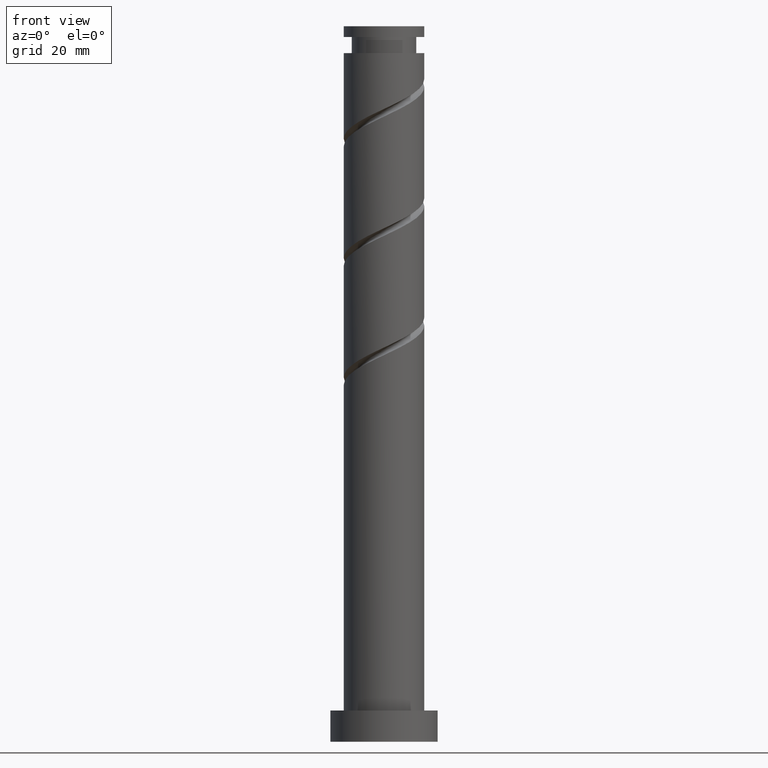
[diagram: clean part render]
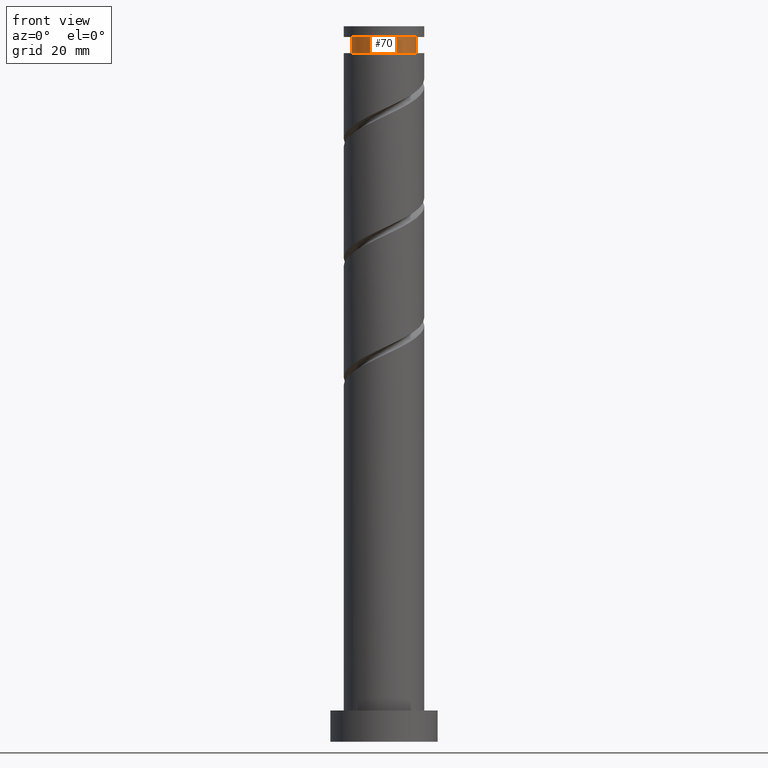
[diagram: same view with one face highlighted and labeled with its STEP entity id]
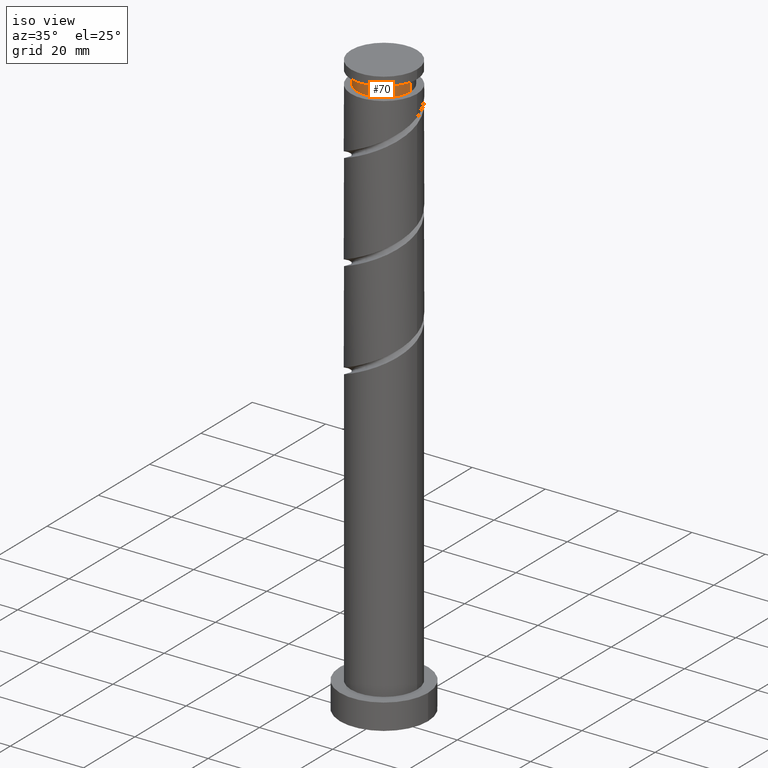
[diagram: same view with one face highlighted and labeled with its STEP entity id]
A machine part, front view. The second image highlights one B-rep face of the part: STEP entity #70.
A second angle (iso view) of the same face is appended — the face is thin or edge-on in the first view.
In plain terms, the highlighted cylindrical surface (edge-blend (fillet) strip) has radius 7.2 mm, axis along (-0, -0, -1).
Its self-contained STEP definition (entity closure, byte-faithful):
#18 = ORIENTED_EDGE ( 'NONE', *, *, #1366, .F. ) ;
#41 = CARTESIAN_POINT ( 'NONE',  ( 0.000000000000000000, 0.000000000000000000, 0.000000000000000000 ) ) ;
#47 = EDGE_CURVE ( 'NONE', #526, #1399, #725, .T. ) ;
#68 = FACE_OUTER_BOUND ( 'NONE', #636, .T. ) ;
#70 = ADVANCED_FACE ( 'NONE', ( #68 ), #1595, .T. ) ;
#91 = CARTESIAN_POINT ( 'NONE',  ( 7.199999999999994849, 8.817456953860936386E-16, 0.000000000000000000 ) ) ;
#94 = ORIENTED_EDGE ( 'NONE', *, *, #1441, .T. ) ;
#214 = CARTESIAN_POINT ( 'NONE',  ( 7.199999999999994849, 8.817456953860936386E-16, 153.9876716117317415 ) ) ;
#287 = DIRECTION ( 'NONE',  ( -0.000000000000000000, -0.000000000000000000, -1.000000000000000000 ) ) ;
#293 = VERTEX_POINT ( 'NONE', #214 ) ;
#345 = CARTESIAN_POINT ( 'NONE',  ( 0.000000000000000000, 0.000000000000000000, 153.9876716117317415 ) ) ;
#361 = LINE ( 'NONE', #876, #617 ) ;
#387 = ORIENTED_EDGE ( 'NONE', *, *, #47, .T. ) ;
#453 = AXIS2_PLACEMENT_3D ( 'NONE', #345, #865, #997 ) ;
#526 = VERTEX_POINT ( 'NONE', #1091 ) ;
#529 = AXIS2_PLACEMENT_3D ( 'NONE', #41, #287, #924 ) ;
#617 = VECTOR ( 'NONE', #752, 1000.000000000000000 ) ;
#636 = EDGE_LOOP ( 'NONE', ( #18, #387, #94, #1029 ) ) ;
#698 = DIRECTION ( 'NONE',  ( -1.000000000000000000, 0.000000000000000000, 0.000000000000000000 ) ) ;
#714 = CARTESIAN_POINT ( 'NONE',  ( 0.000000000000000000, 0.000000000000000000, 157.5876716117317358 ) ) ;
#725 = CIRCLE ( 'NONE', #826, 7.199999999999994849 ) ;
#752 = DIRECTION ( 'NONE',  ( -0.000000000000000000, -0.000000000000000000, -1.000000000000000000 ) ) ;
#826 = AXIS2_PLACEMENT_3D ( 'NONE', #714, #1065, #698 ) ;
#865 = DIRECTION ( 'NONE',  ( -0.000000000000000000, -0.000000000000000000, -1.000000000000000000 ) ) ;
#876 = CARTESIAN_POINT ( 'NONE',  ( -7.199999999999994849, 0.000000000000000000, 0.000000000000000000 ) ) ;
#924 = DIRECTION ( 'NONE',  ( -1.000000000000000000, 0.000000000000000000, 0.000000000000000000 ) ) ;
#997 = DIRECTION ( 'NONE',  ( -1.000000000000000000, 0.000000000000000000, 0.000000000000000000 ) ) ;
#1029 = ORIENTED_EDGE ( 'NONE', *, *, #1236, .F. ) ;
#1065 = DIRECTION ( 'NONE',  ( -0.000000000000000000, -0.000000000000000000, -1.000000000000000000 ) ) ;
#1091 = CARTESIAN_POINT ( 'NONE',  ( 7.199999999999994849, 8.817456953860936386E-16, 157.5876716117317358 ) ) ;
#1116 = LINE ( 'NONE', #91, #1610 ) ;
#1236 = EDGE_CURVE ( 'NONE', #293, #1552, #1507, .T. ) ;
#1255 = CARTESIAN_POINT ( 'NONE',  ( -7.199999999999994849, 0.000000000000000000, 157.5876716117317358 ) ) ;
#1304 = CARTESIAN_POINT ( 'NONE',  ( -7.199999999999994849, 0.000000000000000000, 153.9876716117317415 ) ) ;
#1366 = EDGE_CURVE ( 'NONE', #526, #293, #1116, .T. ) ;
#1399 = VERTEX_POINT ( 'NONE', #1255 ) ;
#1441 = EDGE_CURVE ( 'NONE', #1399, #1552, #361, .T. ) ;
#1507 = CIRCLE ( 'NONE', #453, 7.199999999999994849 ) ;
#1552 = VERTEX_POINT ( 'NONE', #1304 ) ;
#1595 = CYLINDRICAL_SURFACE ( 'NONE', #529, 7.199999999999994849 ) ;
#1610 = VECTOR ( 'NONE', #1623, 1000.000000000000000 ) ;
#1623 = DIRECTION ( 'NONE',  ( -0.000000000000000000, -0.000000000000000000, -1.000000000000000000 ) ) ;